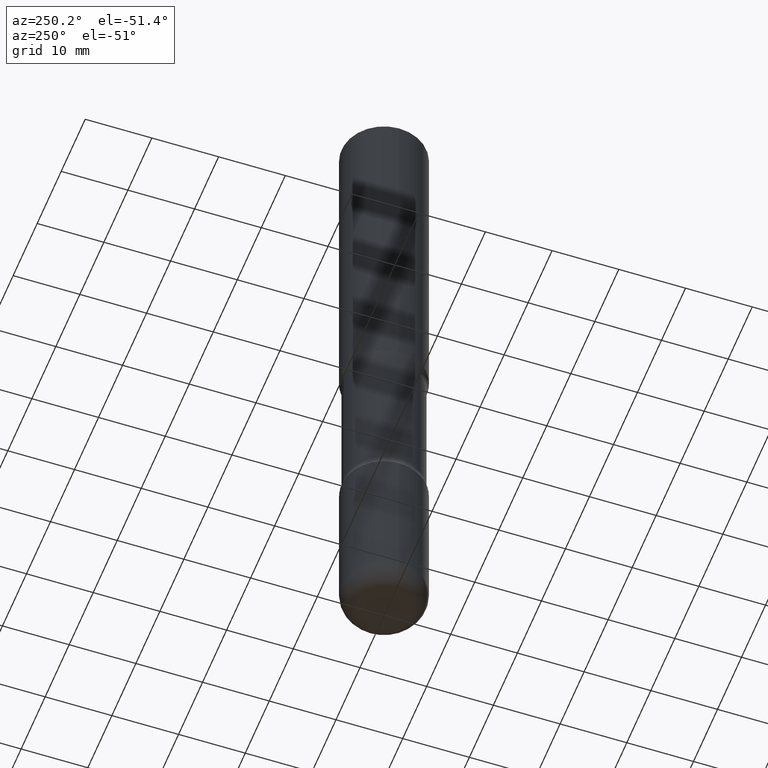
[diagram: clean part render]
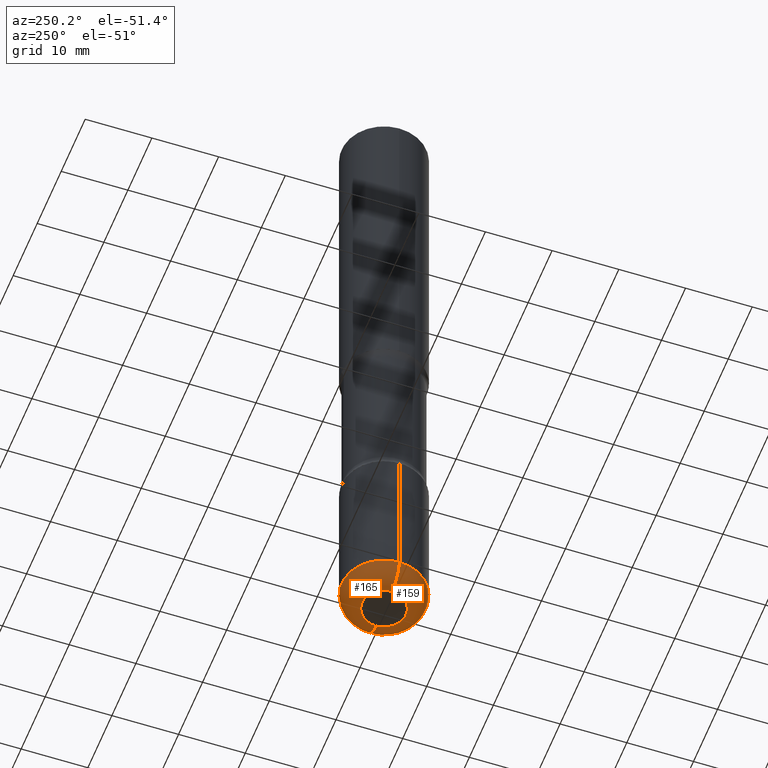
[diagram: same view with one multi-face feature highlighted, each face labeled with its STEP entity id]
A machine part, auxiliary view. The highlighted faces form ONE feature: a constant-radius fillet chain: 2 tangent blend faces with common blend radius 3.048 mm. The faces share edges in the B-rep.
Their STEP definitions:
[1] entity #159 (Torus):
#5 = DIRECTION ( 'NONE',  ( 1.000000000000000000, -6.982962677686267499E-15, 0.000000000000000000 ) ) ;
#11 = CARTESIAN_POINT ( 'NONE',  ( -0.1300000000000003375, -1.262324203822327621E-14, -3.880000000000000782 ) ) ;
#18 = CARTESIAN_POINT ( 'NONE',  ( 9.488418967998331206E-29, -1.354694759471140727E-14, -3.880000000000000782 ) ) ;
#21 = ORIENTED_EDGE ( 'NONE', *, *, #26, .T. ) ;
#26 = EDGE_CURVE ( 'NONE', #300, #426, #419, .T. ) ;
#31 = CIRCLE ( 'NONE', #168, 0.1300000000000003375 ) ;
#47 = AXIS2_PLACEMENT_3D ( 'NONE', #270, #338, #500 ) ;
#52 = VERTEX_POINT ( 'NONE', #443 ) ;
#63 = VERTEX_POINT ( 'NONE', #64 ) ;
#64 = CARTESIAN_POINT ( 'NONE',  ( -0.1300000000000003375, -1.240640527709780404E-14, -4.000000000000000888 ) ) ;
#77 = CIRCLE ( 'NONE', #366, 0.1199999999999999262 ) ;
#115 = FACE_OUTER_BOUND ( 'NONE', #458, .T. ) ;
#149 = CARTESIAN_POINT ( 'NONE',  ( 9.781875224740547508E-29, -1.396592535537258391E-14, -4.000000000000000888 ) ) ;
#153 = DIRECTION ( 'NONE',  ( -2.445468806185136597E-29, 3.491481338843145583E-15, 1.000000000000000000 ) ) ;
#159 = ADVANCED_FACE ( 'NONE', ( #115 ), #496, .T. ) ;
#168 = AXIS2_PLACEMENT_3D ( 'NONE', #149, #153, #454 ) ;
#241 = AXIS2_PLACEMENT_3D ( 'NONE', #18, #328, #486 ) ;
#270 = CARTESIAN_POINT ( 'NONE',  ( 0.1300000000000003375, -1.445473274281062700E-14, -3.880000000000000782 ) ) ;
#300 = VERTEX_POINT ( 'NONE', #349 ) ;
#308 = CARTESIAN_POINT ( 'NONE',  ( 9.488418967998331206E-29, -1.354694759471140727E-14, -3.880000000000000782 ) ) ;
#328 = DIRECTION ( 'NONE',  ( -2.445468806185136597E-29, 3.491481338843145583E-15, 1.000000000000000000 ) ) ;
#334 = ORIENTED_EDGE ( 'NONE', *, *, #438, .T. ) ;
#338 = DIRECTION ( 'NONE',  ( -6.982962677686266711E-15, -1.000000000000000000, 3.491481338843145583E-15 ) ) ;
#349 = CARTESIAN_POINT ( 'NONE',  ( 0.1300000000000003375, -1.487371050347180047E-14, -4.000000000000000888 ) ) ;
#366 = AXIS2_PLACEMENT_3D ( 'NONE', #11, #446, #408 ) ;
#382 = EDGE_CURVE ( 'NONE', #52, #426, #392, .T. ) ;
#392 = CIRCLE ( 'NONE', #463, 0.2500000000000003886 ) ;
#408 = DIRECTION ( 'NONE',  ( -1.000000000000000000, 7.105427357601011325E-15, 0.000000000000000000 ) ) ;
#419 = CIRCLE ( 'NONE', #47, 0.1199999999999999262 ) ;
#420 = ORIENTED_EDGE ( 'NONE', *, *, #382, .F. ) ;
#426 = VERTEX_POINT ( 'NONE', #456 ) ;
#438 = EDGE_CURVE ( 'NONE', #63, #300, #31, .T. ) ;
#439 = DIRECTION ( 'NONE',  ( -2.445468806185136597E-29, 3.491481338843145583E-15, 1.000000000000000000 ) ) ;
#443 = CARTESIAN_POINT ( 'NONE',  ( -0.2500000000000003331, -1.177059075531115523E-14, -3.880000000000000782 ) ) ;
#446 = DIRECTION ( 'NONE',  ( 7.105427357601001859E-15, 1.000000000000000000, -3.491481338843145583E-15 ) ) ;
#454 = DIRECTION ( 'NONE',  ( 1.000000000000000000, -6.982962677686269077E-15, 0.000000000000000000 ) ) ;
#456 = CARTESIAN_POINT ( 'NONE',  ( 0.2500000000000003331, -1.529268826413297711E-14, -3.880000000000000782 ) ) ;
#458 = EDGE_LOOP ( 'NONE', ( #542, #334, #21, #420 ) ) ;
#463 = AXIS2_PLACEMENT_3D ( 'NONE', #308, #439, #5 ) ;
#486 = DIRECTION ( 'NONE',  ( 1.000000000000000000, -6.982962677686270655E-15, 4.883557194083114583E-29 ) ) ;
#496 = TOROIDAL_SURFACE ( 'NONE', #241, 0.1300000000000003375, 0.1199999999999999539 ) ;
#500 = DIRECTION ( 'NONE',  ( 1.000000000000000000, -6.982962677686272233E-15, 0.000000000000000000 ) ) ;
#542 = ORIENTED_EDGE ( 'NONE', *, *, #546, .F. ) ;
#546 = EDGE_CURVE ( 'NONE', #63, #52, #77, .T. ) ;
[2] entity #165 (Torus):
#11 = CARTESIAN_POINT ( 'NONE',  ( -0.1300000000000003375, -1.262324203822327621E-14, -3.880000000000000782 ) ) ;
#17 = AXIS2_PLACEMENT_3D ( 'NONE', #387, #346, #548 ) ;
#26 = EDGE_CURVE ( 'NONE', #300, #426, #419, .T. ) ;
#37 = DIRECTION ( 'NONE',  ( 1.000000000000000000, -6.982962677686269077E-15, 0.000000000000000000 ) ) ;
#47 = AXIS2_PLACEMENT_3D ( 'NONE', #270, #338, #500 ) ;
#52 = VERTEX_POINT ( 'NONE', #443 ) ;
#63 = VERTEX_POINT ( 'NONE', #64 ) ;
#64 = CARTESIAN_POINT ( 'NONE',  ( -0.1300000000000003375, -1.240640527709780404E-14, -4.000000000000000888 ) ) ;
#76 = TOROIDAL_SURFACE ( 'NONE', #17, 0.1300000000000003375, 0.1199999999999999539 ) ;
#77 = CIRCLE ( 'NONE', #366, 0.1199999999999999262 ) ;
#79 = DIRECTION ( 'NONE',  ( -2.445468806185136597E-29, 3.491481338843145583E-15, 1.000000000000000000 ) ) ;
#94 = AXIS2_PLACEMENT_3D ( 'NONE', #304, #509, #37 ) ;
#119 = AXIS2_PLACEMENT_3D ( 'NONE', #540, #79, #424 ) ;
#152 = CIRCLE ( 'NONE', #94, 0.1300000000000003375 ) ;
#165 = ADVANCED_FACE ( 'NONE', ( #321 ), #76, .T. ) ;
#170 = EDGE_CURVE ( 'NONE', #426, #52, #247, .T. ) ;
#214 = EDGE_CURVE ( 'NONE', #300, #63, #152, .T. ) ;
#247 = CIRCLE ( 'NONE', #119, 0.2500000000000003886 ) ;
#259 = EDGE_LOOP ( 'NONE', ( #277, #339, #488, #397 ) ) ;
#270 = CARTESIAN_POINT ( 'NONE',  ( 0.1300000000000003375, -1.445473274281062700E-14, -3.880000000000000782 ) ) ;
#277 = ORIENTED_EDGE ( 'NONE', *, *, #214, .T. ) ;
#300 = VERTEX_POINT ( 'NONE', #349 ) ;
#304 = CARTESIAN_POINT ( 'NONE',  ( 9.781875224740547508E-29, -1.396592535537258391E-14, -4.000000000000000888 ) ) ;
#321 = FACE_OUTER_BOUND ( 'NONE', #259, .T. ) ;
#338 = DIRECTION ( 'NONE',  ( -6.982962677686266711E-15, -1.000000000000000000, 3.491481338843145583E-15 ) ) ;
#339 = ORIENTED_EDGE ( 'NONE', *, *, #546, .T. ) ;
#346 = DIRECTION ( 'NONE',  ( -2.445468806185136597E-29, 3.491481338843145583E-15, 1.000000000000000000 ) ) ;
#349 = CARTESIAN_POINT ( 'NONE',  ( 0.1300000000000003375, -1.487371050347180047E-14, -4.000000000000000888 ) ) ;
#366 = AXIS2_PLACEMENT_3D ( 'NONE', #11, #446, #408 ) ;
#387 = CARTESIAN_POINT ( 'NONE',  ( 9.488418967998331206E-29, -1.354694759471140727E-14, -3.880000000000000782 ) ) ;
#397 = ORIENTED_EDGE ( 'NONE', *, *, #26, .F. ) ;
#408 = DIRECTION ( 'NONE',  ( -1.000000000000000000, 7.105427357601011325E-15, 0.000000000000000000 ) ) ;
#419 = CIRCLE ( 'NONE', #47, 0.1199999999999999262 ) ;
#424 = DIRECTION ( 'NONE',  ( 1.000000000000000000, -6.982962677686267499E-15, 0.000000000000000000 ) ) ;
#426 = VERTEX_POINT ( 'NONE', #456 ) ;
#443 = CARTESIAN_POINT ( 'NONE',  ( -0.2500000000000003331, -1.177059075531115523E-14, -3.880000000000000782 ) ) ;
#446 = DIRECTION ( 'NONE',  ( 7.105427357601001859E-15, 1.000000000000000000, -3.491481338843145583E-15 ) ) ;
#456 = CARTESIAN_POINT ( 'NONE',  ( 0.2500000000000003331, -1.529268826413297711E-14, -3.880000000000000782 ) ) ;
#488 = ORIENTED_EDGE ( 'NONE', *, *, #170, .F. ) ;
#500 = DIRECTION ( 'NONE',  ( 1.000000000000000000, -6.982962677686272233E-15, 0.000000000000000000 ) ) ;
#509 = DIRECTION ( 'NONE',  ( -2.445468806185136597E-29, 3.491481338843145583E-15, 1.000000000000000000 ) ) ;
#540 = CARTESIAN_POINT ( 'NONE',  ( 9.488418967998331206E-29, -1.354694759471140727E-14, -3.880000000000000782 ) ) ;
#546 = EDGE_CURVE ( 'NONE', #63, #52, #77, .T. ) ;
#548 = DIRECTION ( 'NONE',  ( 1.000000000000000000, -6.982962677686270655E-15, 4.883557194083114583E-29 ) ) ;